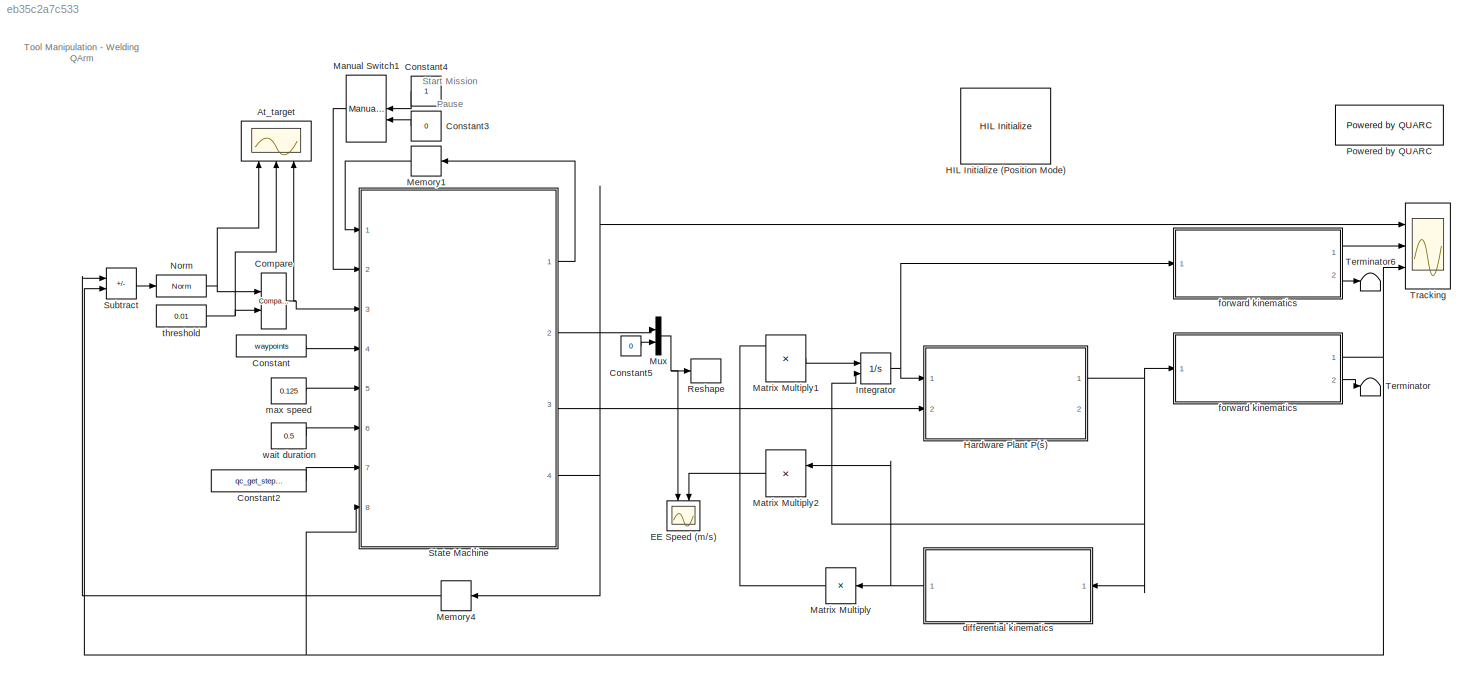
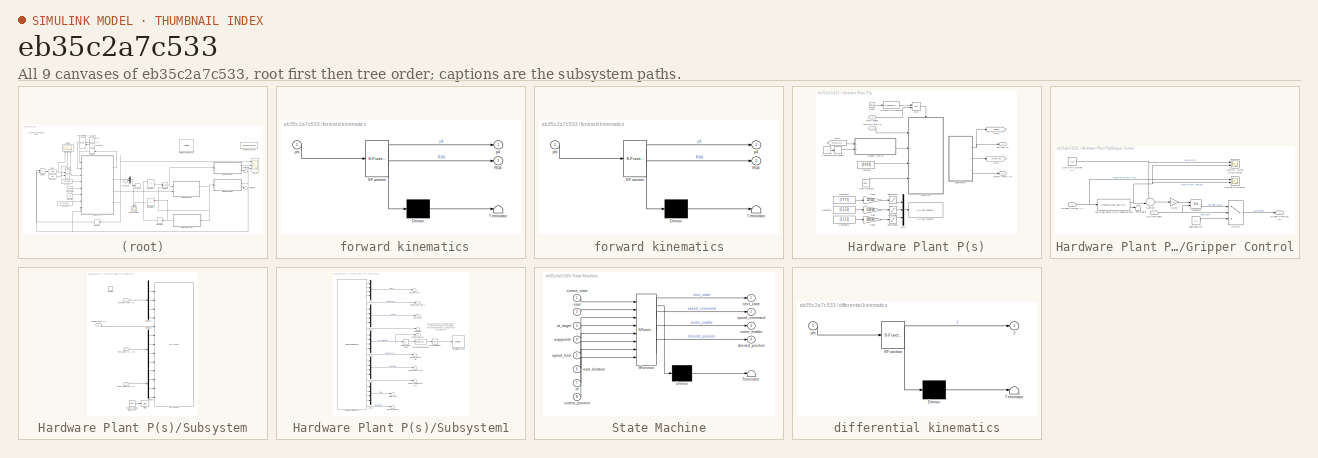
[diagram: thumbnail index - all 9 canvases of the model, root first then tree order]
MODEL slx_eb35c2a7c533
KIND model
CONFIG AbsTol = auto
CONFIG EnableMultiTasking = off
CONFIG FixedStep = 1/500
CONFIG InitFcn = home = [0.45; 0; 0.49];\ndefault_w = [0.25; 0.25; 0.25];\ndefault_a = [0.00; 0.375; 0.2];\nA = [ 0.25; 0.25; 0.1];\nB = [ 0.25; 0.50; 0.1];\nC = [-0.25; 0.50; 0.1];\nD = [-0.25; 0.25; 0.1];\n\nwaypoints_welding = [default_w, A, B, C, D, A]' ;\nwaypoints_assembly = [default_a, A, default_a, B, default_a, C, default_a, D]' ;\n\nwaypoints = waypoints_welding;
CONFIG MaxStep = auto
CONFIG MinStep = auto
CONFIG RelTol = 1e-3
CONFIG SampleTimeConstraint = Unconstrained
CONFIG SolverName = ode4
CONFIG StartTime = 0.0
CONFIG StopTime = Inf
BLOCK [SubSystem]  forward kinematics
  ErrorFcn = Stateflow.Translate.translate
  PermitHierarchicalResolution = ExplicitOnly
  Ports = [1, 2]
  SFBlockType = MATLAB Function
  TreatAsAtomicUnit = on
BLOCK [SubSystem]  forward kinematics 
  ErrorFcn = Stateflow.Translate.translate
  PermitHierarchicalResolution = ExplicitOnly
  Ports = [1, 2]
  SFBlockType = MATLAB Function
  TreatAsAtomicUnit = on
BLOCK [Demux]  forward kinematics / Demux 
  Outputs = 1
  Ports = [1, 1]
BLOCK [S-Function]  forward kinematics / SFunction 
  EnableBusSupport = off
  FunctionName = sf_sfun
  PortCounts = [1 3]
  Ports = [1, 3]
  SFcnIsStateOwnerBlock = off
  SFunctionDeploymentMode = off
  Tag = Stateflow S-Function 5
BLOCK [Terminator]  forward kinematics / Terminator 
BLOCK [Outport]  forward kinematics /R04
  Port = 2
  VectorParamsAs1DForOutWhenUnconnected = off
BLOCK [Outport]  forward kinematics /p4
  VectorParamsAs1DForOutWhenUnconnected = off
BLOCK [Inport]  forward kinematics /phi
BLOCK [Demux]  forward kinematics/ Demux 
  Outputs = 1
  Ports = [1, 1]
BLOCK [S-Function]  forward kinematics/ SFunction 
  EnableBusSupport = off
  FunctionName = sf_sfun
  PortCounts = [1 3]
  Ports = [1, 3]
  SFcnIsStateOwnerBlock = off
  SFunctionDeploymentMode = off
  Tag = Stateflow S-Function 3
BLOCK [Terminator]  forward kinematics/ Terminator 
BLOCK [Outport]  forward kinematics/R04
  Port = 2
  VectorParamsAs1DForOutWhenUnconnected = off
BLOCK [Outport]  forward kinematics/p4
  VectorParamsAs1DForOutWhenUnconnected = off
BLOCK [Inport]  forward kinematics/phi
BLOCK [Scope] At_target
  Floating = off
  NameLocation = left
  NumInputPorts = 3
  Ports = [3]
  ScopeSpecificationString = Simulink.scopes.TimeScopeBlockCfg('CurrentConfiguration', extmgr.ConfigurationSet(extmgr.Configuration('Core','General UI',true),extmgr.Configuration('Core','Source UI',true),extmgr.Configuration('Sources','WiredSimulink',true,'DataLoggingVariableName','ScopeData1'),extmgr.Configuration('Visuals','Time Domain',true,'SerializedDisplays',{struct('MinYLimReal','-0.05856','MaxYLimReal','0.52701','YLab...<+1412ch>
BLOCK [Reference] Compare  REF=quarc_library/Logic Operations/Compare
  Ports = [2, 1]
  SourceBlock = quarc_library/Logic Operations/Compare
  SourceProductName = QUARC Targets
  SourceType = Compare
BLOCK [Constant] Constant
  Value = waypoints
  VectorParams1D = off
BLOCK [Constant] Constant2
  Value = qc_get_step_size
  VectorParams1D = off
BLOCK [Constant] Constant3
  NameLocation = top
  Value = 0
BLOCK [Constant] Constant4
  NameLocation = top
BLOCK [Constant] Constant5
  Value = 0
BLOCK [Scope] EE Speed (m//s)
  Floating = off
  NumInputPorts = 2
  Ports = [2]
  ScopeSpecificationString = Simulink.scopes.TimeScopeBlockCfg('CurrentConfiguration', extmgr.ConfigurationSet(extmgr.Configuration('Core','General UI',true),extmgr.Configuration('Core','Source UI',true),extmgr.Configuration('Sources','WiredSimulink',true,'DataLoggingVariableName','ScopeData1'),extmgr.Configuration('Visuals','Time Domain',true,'SerializedDisplays',{struct('MinYLimReal','-1.00000','MaxYLimReal','1.00000','YLab...<+1792ch>
BLOCK [Reference] HIL Initialize (Position Mode)  REF=quarc_library/Data Acquisition/Generic/Configuration/HIL Initialize
  AttributesFormatString = %<object_name> (%<board_type>-%<board_number>)
  Ports = []
  Priority = 1
  SourceBlock = quarc_library/Data Acquisition/Generic/Configuration/HIL Initialize
  SourceProductName = QUARC Targets
  SourceType = HIL Initialize
  UserDataPersistent = on
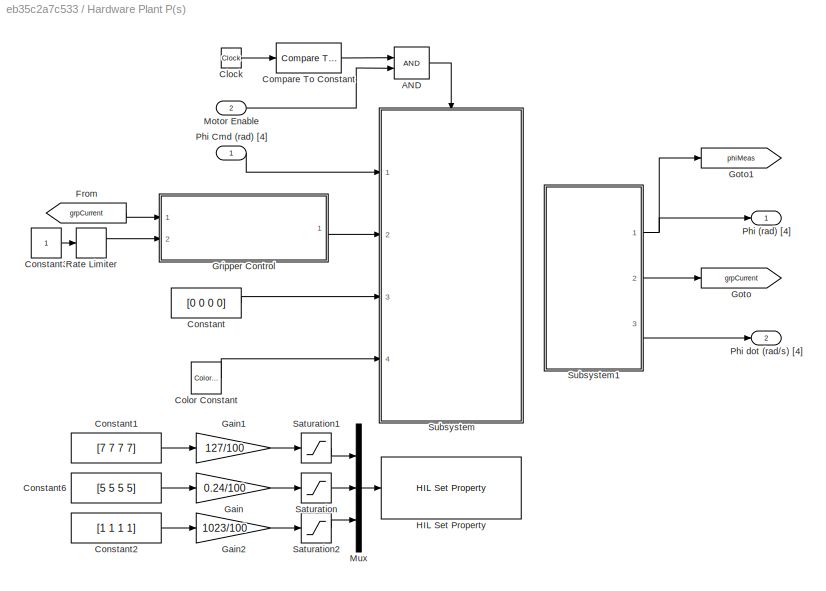
BLOCK [SubSystem] Hardware Plant P(s)
  NameLocation = top
  Permissions = NoReadOrWrite
  Ports = [2, 2]
BLOCK [Logic] Hardware Plant P(s)/AND
  AllPortsSameDT = off
  IconShape = distinctive
  OutDataTypeStr = boolean
  Ports = [2, 1]
BLOCK [Clock] Hardware Plant P(s)/Clock
BLOCK [Reference] Hardware Plant P(s)/Color Constant  REF=quarc_library/Sources/Signals/Color Constant
  Ports = [0, 1]
  SourceBlock = quarc_library/Sources/Signals/Color Constant
  SourceProductName = QUARC Targets
  SourceType = Color Constant
BLOCK [Reference] Hardware Plant P(s)/Compare To Constant  REF=simulink/Logic and Bit
Operations/Compare
To Constant
  Ports = [1, 1]
  SourceBlock = simulink/Logic and Bit\nOperations/Compare\nTo Constant
  SourceType = Compare To Constant
BLOCK [Constant] Hardware Plant P(s)/Constant
  Value = [0 0 0 0]
BLOCK [Constant] Hardware Plant P(s)/Constant1
  Value = [7 7 7 7]
BLOCK [Constant] Hardware Plant P(s)/Constant2
  Value = [1 1 1 1]
BLOCK [Constant] Hardware Plant P(s)/Constant3
BLOCK [Constant] Hardware Plant P(s)/Constant6
  Value = [5 5 5 5]
BLOCK [From] Hardware Plant P(s)/From
  GotoTag = grpCurrent
BLOCK [Gain] Hardware Plant P(s)/Gain
  Gain = 0.24/100
BLOCK [Gain] Hardware Plant P(s)/Gain1
  Gain = 127/100
BLOCK [Gain] Hardware Plant P(s)/Gain2
  Gain = 1023/100
BLOCK [Goto] Hardware Plant P(s)/Goto
  GotoTag = grpCurrent
BLOCK [Goto] Hardware Plant P(s)/Goto1
  GotoTag = phiMeas
  TagVisibility = global
BLOCK [SubSystem] Hardware Plant P(s)/Gripper Control
  Ports = [2, 1]
BLOCK [Reference] Hardware Plant P(s)/Gripper Control/2nd Order 25Hz filter (based on FFT)  REF=quarc_library/Continuous/Second-Order
Low-Pass Filter
  Ports = [1, 2]
  SourceBlock = quarc_library/Continuous/Second-Order\nLow-Pass Filter
  SourceProductName = QUARC Targets
  SourceType = Second-Order Low-Pass Filter
BLOCK [Scope] Hardware Plant P(s)/Gripper Control/Current Filteration
  Floating = off
  NameLocation = top
  NumInputPorts = 2
  Ports = [2]
  ScopeSpecificationString = Simulink.scopes.TimeScopeBlockCfg('CurrentConfiguration', extmgr.ConfigurationSet(extmgr.Configuration('Core','General UI',true),extmgr.Configuration('Core','Source UI',true),extmgr.Configuration('Sources','WiredSimulink',true,'DataLoggingVariableName','ScopeData5'),extmgr.Configuration('Visuals','Time Domain',true,'SerializedDisplays',{struct('MinYLimReal','-0.01447','MaxYLimReal','0.62651','YLab...<+1429ch>
BLOCK [Gain] Hardware Plant P(s)/Gripper Control/Gain2
  Gain = 10
BLOCK [Scope] Hardware Plant P(s)/Gripper Control/Goal vs. Actual Grip Current
  Floating = off
  NameLocation = top
  NumInputPorts = 2
  Ports = [2]
  ScopeSpecificationString = Simulink.scopes.TimeScopeBlockCfg('CurrentConfiguration', extmgr.ConfigurationSet(extmgr.Configuration('Core','General UI',true),extmgr.Configuration('Core','Source UI',true),extmgr.Configuration('Sources','WiredSimulink',true,'DataLoggingVariableName','ScopeData4'),extmgr.Configuration('Visuals','Time Domain',true,'SerializedDisplays',{struct('MinYLimReal','0.00229','MaxYLimReal','0.27702','YLabe...<+1426ch>
BLOCK [Inport] Hardware Plant P(s)/Gripper Control/Gripper Current (A)
BLOCK [Outport] Hardware Plant P(s)/Gripper Control/Gripper Position (%)
  VectorParamsAs1DForOutWhenUnconnected = off
BLOCK [Integrator] Hardware Plant P(s)/Gripper Control/Integrator
  ExternalReset = either
  InitialCondition = 0.1
  LimitOutput = on
  LowerSaturationLimit = 0.1
  Ports = [2, 1]
  UpperSaturationLimit = 0.9
BLOCK [Inport] Hardware Plant P(s)/Gripper Control/ON//OFF (bool)
  Port = 2
BLOCK [Constant] Hardware Plant P(s)/Gripper Control/Soft-Grip Current (A)
  Value = 0.25
BLOCK [Sum] Hardware Plant P(s)/Gripper Control/Subtract
  Inputs = +-|
  Ports = [2, 1]
BLOCK [Switch] Hardware Plant P(s)/Gripper Control/Switch
  Criteria = u2 > Threshold
  InputSameDT = off
  SaturateOnIntegerOverflow = off
BLOCK [Terminator] Hardware Plant P(s)/Gripper Control/Terminator
BLOCK [Constant] Hardware Plant P(s)/Gripper Control/open position
  Value = 0.1
BLOCK [Reference] Hardware Plant P(s)/HIL Set Property  REF=quarc_library/Data Acquisition/Generic/Configuration/HIL Set Property
  AttributesFormatString = (%<object_name>)
  Ports = [1]
  SourceBlock = quarc_library/Data Acquisition/Generic/Configuration/HIL Set Property
  SourceProductName = QUARC Targets
  SourceType = HIL Set Property
  UserDataPersistent = on
BLOCK [Inport] Hardware Plant P(s)/Motor Enable
  Port = 2
BLOCK [Mux] Hardware Plant P(s)/Mux
  DisplayOption = bar
  Inputs = 3
  Ports = [3, 1]
BLOCK [Outport] Hardware Plant P(s)/Phi (rad) [4]
  VectorParamsAs1DForOutWhenUnconnected = off
BLOCK [Inport] Hardware Plant P(s)/Phi Cmd (rad) [4]
BLOCK [Outport] Hardware Plant P(s)/Phi dot (rad//s) [4]
  Port = 2
  VectorParamsAs1DForOutWhenUnconnected = off
BLOCK [RateLimiter] Hardware Plant P(s)/Rate Limiter
  SampleTimeMode = inherited
BLOCK [Saturate] Hardware Plant P(s)/Saturation
  LowerLimit = 0
  UpperLimit = 0.24
BLOCK [Saturate] Hardware Plant P(s)/Saturation1
  LowerLimit = 0
  UpperLimit = 127
BLOCK [Saturate] Hardware Plant P(s)/Saturation2
  LowerLimit = 0
  UpperLimit = 1023
BLOCK [SubSystem] Hardware Plant P(s)/Subsystem
  Ports = [4, 0, 1]
BLOCK [Inport] Hardware Plant P(s)/Subsystem/Base RGB Led (%)
  Port = 4
BLOCK [Bias] Hardware Plant P(s)/Subsystem/Bias
  Bias = 0.5
  SaturateOnIntegerOverflow = off
BLOCK [Demux] Hardware Plant P(s)/Subsystem/Demux
  Outputs = 3
  Ports = [1, 3]
BLOCK [Demux] Hardware Plant P(s)/Subsystem/Demux1
  Ports = [1, 4]
BLOCK [Demux] Hardware Plant P(s)/Subsystem/Demux2
  Ports = [1, 4]
BLOCK [EnablePort] Hardware Plant P(s)/Subsystem/Enable
  Ports = []
BLOCK [Inport] Hardware Plant P(s)/Subsystem/Gripper Cmd (%)
  Port = 2
BLOCK [Reference] Hardware Plant P(s)/Subsystem/HIL Write  REF=quarc_library/Data Acquisition/Generic/Immediate I//O/HIL Write
  AttributesFormatString = (%<object_name>)
  Ports = [13]
  SourceBlock = quarc_library/Data Acquisition/Generic/Immediate I//O/HIL Write
  SourceProductName = QUARC Targets
  SourceType = HIL Write
  UserDataPersistent = on
BLOCK [Inport] Hardware Plant P(s)/Subsystem/PWM Cmd (%) [4]
  Port = 3
BLOCK [Inport] Hardware Plant P(s)/Subsystem/Phi Cmd (rad) [4]
BLOCK [Reference] Hardware Plant P(s)/Subsystem/Smooth Signal Generator  REF=quarc_library/Sources/Signals/Smooth Signal
Generator
  Ports = [0, 1]
  SourceBlock = quarc_library/Sources/Signals/Smooth Signal\nGenerator
  SourceProductName = QUARC Targets
  SourceType = Smooth Signal Generator
BLOCK [SubSystem] Hardware Plant P(s)/Subsystem1
  Ports = [0, 3]
BLOCK [Terminator] Hardware Plant P(s)/Subsystem1/Current (A) [4]
BLOCK [Outport] Hardware Plant P(s)/Subsystem1/Gripper Current (A)
  Port = 2
  VectorParamsAs1DForOutWhenUnconnected = off
BLOCK [Terminator] Hardware Plant P(s)/Subsystem1/Gripper PWM (%)
BLOCK [Terminator] Hardware Plant P(s)/Subsystem1/Gripper Speed (%//s)
BLOCK [Terminator] Hardware Plant P(s)/Subsystem1/Gripper Temperature (C)
BLOCK [Reference] Hardware Plant P(s)/Subsystem1/HIL Read Timebase1  REF=quarc_library/Data Acquisition/Generic/Timebases/HIL Read
Timebase
  AttributesFormatString = (%<object_name>)
  Ports = [0, 25]
  SourceBlock = quarc_library/Data Acquisition/Generic/Timebases/HIL Read\nTimebase
  SourceProductName = QUARC Targets
  SourceType = HIL Read Timebase
  UserDataPersistent = on
BLOCK [Mux] Hardware Plant P(s)/Subsystem1/Mux
  DisplayOption = bar
  Ports = [4, 1]
BLOCK [Mux] Hardware Plant P(s)/Subsystem1/Mux1
  DisplayOption = bar
  Ports = [4, 1]
BLOCK [Mux] Hardware Plant P(s)/Subsystem1/Mux2
  DisplayOption = bar
  Ports = [4, 1]
BLOCK [Mux] Hardware Plant P(s)/Subsystem1/Mux3
  DisplayOption = bar
  Ports = [4, 1]
BLOCK [Mux] Hardware Plant P(s)/Subsystem1/Mux4
  DisplayOption = bar
  Ports = [4, 1]
BLOCK [Terminator] Hardware Plant P(s)/Subsystem1/PWM (%) [4]
BLOCK [Outport] Hardware Plant P(s)/Subsystem1/Phi (rad) [4]
  VectorParamsAs1DForOutWhenUnconnected = off
BLOCK [Outport] Hardware Plant P(s)/Subsystem1/Phi dot (rad//s) [4]
  Port = 3
  VectorParamsAs1DForOutWhenUnconnected = off
BLOCK [Reference] Hardware Plant P(s)/Subsystem1/Stop with Message  REF=quarc_library/Sinks/Error Handling/Stop with Message
  AttributesFormatString = "%<message>"
  Ports = [1]
  SourceBlock = quarc_library/Sinks/Error Handling/Stop with Message
  SourceProductName = QUARC Targets
  SourceType = Stop with Message
BLOCK [Terminator] Hardware Plant P(s)/Subsystem1/Temperature (C) [4]
BLOCK [Terminator] Hardware Plant P(s)/Subsystem1/Terminator
BLOCK [Logic] Hardware Plant P(s)/Subsystem1/for any of the joints
  AllPortsSameDT = off
  IconShape = distinctive
  Inputs = 1
  Operator = OR
  OutDataTypeStr = boolean
  Ports = [1, 1]
BLOCK [Abs] Hardware Plant P(s)/Subsystem1/if the absolute speed
  SaturateOnIntegerOverflow = off
BLOCK [Reference] Hardware Plant P(s)/Subsystem1/is greater than 90 deg//s  REF=simulink/Logic and Bit
Operations/Compare
To Constant
  Ports = [1, 1]
  SourceBlock = simulink/Logic and Bit\nOperations/Compare\nTo Constant
  SourceType = Compare To Constant
BLOCK [Integrator] Integrator
  InitialConditionSource = external
  Ports = [2, 1]
BLOCK [ManualSwitch] Manual Switch1
  CurrentSetting = 0
  NameLocation = top
BLOCK [Product] Matrix Multiply
  Inputs = /
  Multiplication = Matrix(*)
  NameLocation = top
  Ports = [1, 1]
BLOCK [Product] Matrix Multiply1
  Multiplication = Matrix(*)
  Ports = [2, 1]
BLOCK [Product] Matrix Multiply2
  Multiplication = Matrix(*)
  NameLocation = top
  Ports = [2, 1]
BLOCK [Memory] Memory1
  InitialCondition = 1
  NameLocation = top
BLOCK [Memory] Memory4
  InitialCondition = home'
BLOCK [Mux] Mux
  DisplayOption = bar
  Inputs = 2
  Ports = [2, 1]
BLOCK [Reference] Norm  REF=quarc_library/Math Operations/Vectors/Norm
  Ports = [1, 1]
  SourceBlock = quarc_library/Math Operations/Vectors/Norm
  SourceProductName = QUARC Targets
  SourceType = Norm
BLOCK [Reference] Powered by QUARC  REF=quarc_library/Logos/Powered by QUARC
  Ports = []
  SourceBlock = quarc_library/Logos/Powered by QUARC
  SourceProductName = QUARC Targets
  SourceType = Powered by QUARC
BLOCK [Reshape] Reshape
  OutputDimensionality = Column vector (2-D)
  Ports = [1, 1]
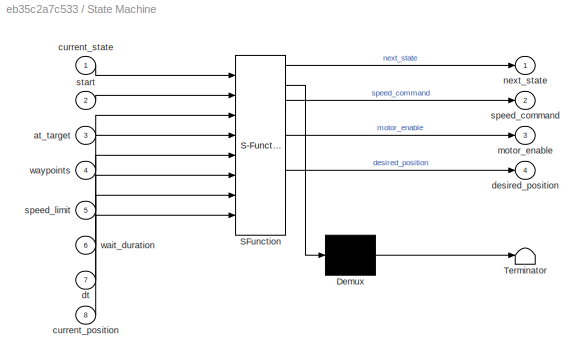
BLOCK [SubSystem] State Machine
  ErrorFcn = Stateflow.Translate.translate
  PermitHierarchicalResolution = ExplicitOnly
  Ports = [8, 4]
  SFBlockType = MATLAB Function
  TreatAsAtomicUnit = on
BLOCK [Demux] State Machine/ Demux 
  Outputs = 1
  Ports = [1, 1]
BLOCK [S-Function] State Machine/ SFunction 
  EnableBusSupport = off
  FunctionName = sf_sfun
  PortCounts = [8 5]
  Ports = [8, 5]
  SFcnIsStateOwnerBlock = off
  SFunctionDeploymentMode = off
  Tag = Stateflow S-Function 2
BLOCK [Terminator] State Machine/ Terminator 
BLOCK [Inport] State Machine/at_target
  Port = 3
BLOCK [Inport] State Machine/current_position
  Port = 8
BLOCK [Inport] State Machine/current_state
BLOCK [Outport] State Machine/desired_position
  Port = 4
  VectorParamsAs1DForOutWhenUnconnected = off
BLOCK [Inport] State Machine/dt
  Port = 7
BLOCK [Outport] State Machine/motor_enable
  Port = 3
BLOCK [Outport] State Machine/next_state
  VectorParamsAs1DForOutWhenUnconnected = off
BLOCK [Outport] State Machine/speed_command
  Port = 2
  VectorParamsAs1DForOutWhenUnconnected = off
BLOCK [Inport] State Machine/speed_limit
  Port = 5
BLOCK [Inport] State Machine/start
  Port = 2
BLOCK [Inport] State Machine/wait_duration
  Port = 6
BLOCK [Inport] State Machine/waypoints
  Port = 4
BLOCK [Sum] Subtract
  IconShape = rectangular
  Inputs = +-
  Ports = [2, 1]
BLOCK [Terminator] Terminator
BLOCK [Terminator] Terminator6
BLOCK [Scope] Tracking
  Floating = off
  NumInputPorts = 3
  Ports = [3]
  ScopeSpecificationString = Simulink.scopes.TimeScopeBlockCfg('CurrentConfiguration', extmgr.ConfigurationSet(extmgr.Configuration('Core','General UI',true),extmgr.Configuration('Core','Source UI',true),extmgr.Configuration('Sources','WiredSimulink',true),extmgr.Configuration('Visuals','Time Domain',true,'SerializedDisplays',{struct('MinYLimReal','-0.625','MaxYLimReal','0.625','YLabelReal','','MinYLimMag','0.00000','MaxYLimM...<+1612ch>
BLOCK [SubSystem] differential kinematics
  ErrorFcn = Stateflow.Translate.translate
  PermitHierarchicalResolution = ExplicitOnly
  Ports = [1, 1]
  SFBlockType = MATLAB Function
  TreatAsAtomicUnit = on
BLOCK [Demux] differential kinematics/ Demux 
  Outputs = 1
  Ports = [1, 1]
BLOCK [S-Function] differential kinematics/ SFunction 
  EnableBusSupport = off
  FunctionName = sf_sfun
  PortCounts = [1 2]
  Ports = [1, 2]
  SFcnIsStateOwnerBlock = off
  SFunctionDeploymentMode = off
  Tag = Stateflow S-Function 1
BLOCK [Terminator] differential kinematics/ Terminator 
BLOCK [Outport] differential kinematics/J
  VectorParamsAs1DForOutWhenUnconnected = off
BLOCK [Inport] differential kinematics/phi
BLOCK [Constant] max speed
  Value = 0.125
  VectorParams1D = off
BLOCK [Constant] threshold
  Value = 0.01
  VectorParams1D = off
BLOCK [Constant] wait duration
  Value = 0.5
  VectorParams1D = off
ANNOTATION (root): Tool Manipulation - Welding QArm
ANNOTATION (root): Pause
ANNOTATION (root): Start Mission
ANNOTATION Hardware Plant P(s)/Subsystem1: Maximum speed is 90 deg/s, but it should not be moving any faster than 45 deg/s. If it is, failure is detected. Power cycle the arm and restart the model.
LINE  forward kinematics :1 -> Tracking:2
LINE  forward kinematics :2 -> Terminator6:1
NET  forward kinematics:1 -> State Machine:8, Subtract:2, Tracking:3
LINE  forward kinematics:2 -> Terminator:1
NET Compare:1 -> At_target:3, State Machine:3
LINE Constant2:1 -> State Machine:7
LINE Constant3:1 -> Manual Switch1:2
LINE Constant4:1 -> Manual Switch1:1
LINE Constant5:1 -> Mux:2
LINE Constant:1 -> State Machine:4
LINE Hardware Plant P(s)/AND:1 -> Hardware Plant P(s)/Subsystem:enable
LINE Hardware Plant P(s)/Clock:1 -> Hardware Plant P(s)/Compare To Constant:1
LINE Hardware Plant P(s)/Color Constant:1 -> Hardware Plant P(s)/Subsystem:4
LINE Hardware Plant P(s)/Compare To Constant:1 -> Hardware Plant P(s)/AND:1
LINE Hardware Plant P(s)/Constant1:1 -> Hardware Plant P(s)/Gain1:1
LINE Hardware Plant P(s)/Constant2:1 -> Hardware Plant P(s)/Gain2:1
LINE Hardware Plant P(s)/Constant3:1 -> Hardware Plant P(s)/Rate Limiter:1
LINE Hardware Plant P(s)/Constant6:1 -> Hardware Plant P(s)/Gain:1
LINE Hardware Plant P(s)/Constant:1 -> Hardware Plant P(s)/Subsystem:3
LINE Hardware Plant P(s)/From:1 -> Hardware Plant P(s)/Gripper Control:1
LINE Hardware Plant P(s)/Gain1:1 -> Hardware Plant P(s)/Saturation1:1
LINE Hardware Plant P(s)/Gain2:1 -> Hardware Plant P(s)/Saturation2:1
LINE Hardware Plant P(s)/Gain:1 -> Hardware Plant P(s)/Saturation:1
NET Hardware Plant P(s)/Gripper Control/2nd Order 25Hz filter (based on FFT):1 -> Hardware Plant P(s)/Gripper Control/Current Filteration:2, Hardware Plant P(s)/Gripper Control/Goal vs. Actual Grip Current:2, Hardware Plant P(s)/Gripper Control/Subtract:2
LINE Hardware Plant P(s)/Gripper Control/2nd Order 25Hz filter (based on FFT):2 -> Hardware Plant P(s)/Gripper Control/Terminator:1
LINE Hardware Plant P(s)/Gripper Control/Gain2:1 -> Hardware Plant P(s)/Gripper Control/Integrator:1
NET Hardware Plant P(s)/Gripper Control/Gripper Current (A):1 -> Hardware Plant P(s)/Gripper Control/2nd Order 25Hz filter (based on FFT):1, Hardware Plant P(s)/Gripper Control/Current Filteration:1
LINE Hardware Plant P(s)/Gripper Control/Integrator:1 -> Hardware Plant P(s)/Gripper Control/Switch:1
NET Hardware Plant P(s)/Gripper Control/ON//OFF (bool):1 -> Hardware Plant P(s)/Gripper Control/Integrator:2, Hardware Plant P(s)/Gripper Control/Switch:2
NET Hardware Plant P(s)/Gripper Control/Soft-Grip Current (A):1 -> Hardware Plant P(s)/Gripper Control/Goal vs. Actual Grip Current:1, Hardware Plant P(s)/Gripper Control/Subtract:1
LINE Hardware Plant P(s)/Gripper Control/Subtract:1 -> Hardware Plant P(s)/Gripper Control/Gain2:1
LINE Hardware Plant P(s)/Gripper Control/Switch:1 -> Hardware Plant P(s)/Gripper Control/Gripper Position (%):1
LINE Hardware Plant P(s)/Gripper Control/open position:1 -> Hardware Plant P(s)/Gripper Control/Switch:3
LINE Hardware Plant P(s)/Gripper Control:1 -> Hardware Plant P(s)/Subsystem:2
LINE Hardware Plant P(s)/Motor Enable:1 -> Hardware Plant P(s)/AND:2
LINE Hardware Plant P(s)/Mux:1 -> Hardware Plant P(s)/HIL Set Property:1
LINE Hardware Plant P(s)/Phi Cmd (rad) [4]:1 -> Hardware Plant P(s)/Subsystem:1
LINE Hardware Plant P(s)/Rate Limiter:1 -> Hardware Plant P(s)/Gripper Control:2
LINE Hardware Plant P(s)/Saturation1:1 -> Hardware Plant P(s)/Mux:1
LINE Hardware Plant P(s)/Saturation2:1 -> Hardware Plant P(s)/Mux:3
LINE Hardware Plant P(s)/Saturation:1 -> Hardware Plant P(s)/Mux:2
LINE Hardware Plant P(s)/Subsystem/Base RGB Led (%):1 -> Hardware Plant P(s)/Subsystem/Demux:1
LINE Hardware Plant P(s)/Subsystem/Bias:1 -> Hardware Plant P(s)/Subsystem/HIL Write:13
LINE Hardware Plant P(s)/Subsystem/Demux1:1 -> Hardware Plant P(s)/Subsystem/HIL Write:1
LINE Hardware Plant P(s)/Subsystem/Demux1:2 -> Hardware Plant P(s)/Subsystem/HIL Write:2
LINE Hardware Plant P(s)/Subsystem/Demux1:3 -> Hardware Plant P(s)/Subsystem/HIL Write:3
LINE Hardware Plant P(s)/Subsystem/Demux1:4 -> Hardware Plant P(s)/Subsystem/HIL Write:4
LINE Hardware Plant P(s)/Subsystem/Demux2:1 -> Hardware Plant P(s)/Subsystem/HIL Write:6
LINE Hardware Plant P(s)/Subsystem/Demux2:2 -> Hardware Plant P(s)/Subsystem/HIL Write:7
LINE Hardware Plant P(s)/Subsystem/Demux2:3 -> Hardware Plant P(s)/Subsystem/HIL Write:8
LINE Hardware Plant P(s)/Subsystem/Demux2:4 -> Hardware Plant P(s)/Subsystem/HIL Write:9
LINE Hardware Plant P(s)/Subsystem/Demux:1 -> Hardware Plant P(s)/Subsystem/HIL Write:10
LINE Hardware Plant P(s)/Subsystem/Demux:2 -> Hardware Plant P(s)/Subsystem/HIL Write:11
LINE Hardware Plant P(s)/Subsystem/Demux:3 -> Hardware Plant P(s)/Subsystem/HIL Write:12
LINE Hardware Plant P(s)/Subsystem/Gripper Cmd (%):1 -> Hardware Plant P(s)/Subsystem/HIL Write:5
LINE Hardware Plant P(s)/Subsystem/PWM Cmd (%) [4]:1 -> Hardware Plant P(s)/Subsystem/Demux2:1
LINE Hardware Plant P(s)/Subsystem/Phi Cmd (rad) [4]:1 -> Hardware Plant P(s)/Subsystem/Demux1:1
LINE Hardware Plant P(s)/Subsystem/Smooth Signal Generator:1 -> Hardware Plant P(s)/Subsystem/Bias:1
LINE Hardware Plant P(s)/Subsystem1/HIL Read Timebase1:1 -> Hardware Plant P(s)/Subsystem1/Mux:1
LINE Hardware Plant P(s)/Subsystem1/HIL Read Timebase1:10 -> Hardware Plant P(s)/Subsystem1/Terminator:1
LINE Hardware Plant P(s)/Subsystem1/HIL Read Timebase1:11 -> Hardware Plant P(s)/Subsystem1/Mux1:1
LINE Hardware Plant P(s)/Subsystem1/HIL Read Timebase1:12 -> Hardware Plant P(s)/Subsystem1/Mux1:2
LINE Hardware Plant P(s)/Subsystem1/HIL Read Timebase1:13 -> Hardware Plant P(s)/Subsystem1/Mux1:3
LINE Hardware Plant P(s)/Subsystem1/HIL Read Timebase1:14 -> Hardware Plant P(s)/Subsystem1/Mux1:4
LINE Hardware Plant P(s)/Subsystem1/HIL Read Timebase1:15 -> Hardware Plant P(s)/Subsystem1/Gripper Speed (%//s):1
LINE Hardware Plant P(s)/Subsystem1/HIL Read Timebase1:16 -> Hardware Plant P(s)/Subsystem1/Mux3:1
LINE Hardware Plant P(s)/Subsystem1/HIL Read Timebase1:17 -> Hardware Plant P(s)/Subsystem1/Mux3:2
LINE Hardware Plant P(s)/Subsystem1/HIL Read Timebase1:18 -> Hardware Plant P(s)/Subsystem1/Mux3:3
LINE Hardware Plant P(s)/Subsystem1/HIL Read Timebase1:19 -> Hardware Plant P(s)/Subsystem1/Mux3:4
LINE Hardware Plant P(s)/Subsystem1/HIL Read Timebase1:2 -> Hardware Plant P(s)/Subsystem1/Mux:2
LINE Hardware Plant P(s)/Subsystem1/HIL Read Timebase1:20 -> Hardware Plant P(s)/Subsystem1/Gripper Temperature (C):1
LINE Hardware Plant P(s)/Subsystem1/HIL Read Timebase1:21 -> Hardware Plant P(s)/Subsystem1/Mux4:1
LINE Hardware Plant P(s)/Subsystem1/HIL Read Timebase1:22 -> Hardware Plant P(s)/Subsystem1/Mux4:2
LINE Hardware Plant P(s)/Subsystem1/HIL Read Timebase1:23 -> Hardware Plant P(s)/Subsystem1/Mux4:3
LINE Hardware Plant P(s)/Subsystem1/HIL Read Timebase1:24 -> Hardware Plant P(s)/Subsystem1/Mux4:4
LINE Hardware Plant P(s)/Subsystem1/HIL Read Timebase1:25 -> Hardware Plant P(s)/Subsystem1/Gripper PWM (%):1
LINE Hardware Plant P(s)/Subsystem1/HIL Read Timebase1:3 -> Hardware Plant P(s)/Subsystem1/Mux:3
LINE Hardware Plant P(s)/Subsystem1/HIL Read Timebase1:4 -> Hardware Plant P(s)/Subsystem1/Mux:4
LINE Hardware Plant P(s)/Subsystem1/HIL Read Timebase1:5 -> Hardware Plant P(s)/Subsystem1/Gripper Current (A):1
LINE Hardware Plant P(s)/Subsystem1/HIL Read Timebase1:6 -> Hardware Plant P(s)/Subsystem1/Mux2:1
LINE Hardware Plant P(s)/Subsystem1/HIL Read Timebase1:7 -> Hardware Plant P(s)/Subsystem1/Mux2:2
LINE Hardware Plant P(s)/Subsystem1/HIL Read Timebase1:8 -> Hardware Plant P(s)/Subsystem1/Mux2:3
LINE Hardware Plant P(s)/Subsystem1/HIL Read Timebase1:9 -> Hardware Plant P(s)/Subsystem1/Mux2:4
NET Hardware Plant P(s)/Subsystem1/Mux1:1 -> Hardware Plant P(s)/Subsystem1/Phi dot (rad//s) [4]:1, Hardware Plant P(s)/Subsystem1/if the absolute speed:1
LINE Hardware Plant P(s)/Subsystem1/Mux2:1 -> Hardware Plant P(s)/Subsystem1/Phi (rad) [4]:1
LINE Hardware Plant P(s)/Subsystem1/Mux3:1 -> Hardware Plant P(s)/Subsystem1/Temperature (C) [4]:1
LINE Hardware Plant P(s)/Subsystem1/Mux4:1 -> Hardware Plant P(s)/Subsystem1/PWM (%) [4]:1
LINE Hardware Plant P(s)/Subsystem1/Mux:1 -> Hardware Plant P(s)/Subsystem1/Current (A) [4]:1
LINE Hardware Plant P(s)/Subsystem1/for any of the joints:1 -> Hardware Plant P(s)/Subsystem1/Stop with Message:1
LINE Hardware Plant P(s)/Subsystem1/if the absolute speed:1 -> Hardware Plant P(s)/Subsystem1/is greater than 90 deg//s:1
LINE Hardware Plant P(s)/Subsystem1/is greater than 90 deg//s:1 -> Hardware Plant P(s)/Subsystem1/for any of the joints:1
NET Hardware Plant P(s)/Subsystem1:1 -> Hardware Plant P(s)/Goto1:1, Hardware Plant P(s)/Phi (rad) [4]:1
LINE Hardware Plant P(s)/Subsystem1:2 -> Hardware Plant P(s)/Goto:1
LINE Hardware Plant P(s)/Subsystem1:3 -> Hardware Plant P(s)/Phi dot (rad//s) [4]:1
NET Hardware Plant P(s):1 ->  forward kinematics:1, Integrator:2, differential kinematics:1
NET Integrator:1 ->  forward kinematics :1, Hardware Plant P(s):1
LINE Manual Switch1:1 -> State Machine:2
LINE Matrix Multiply1:1 -> Integrator:1
LINE Matrix Multiply2:1 -> EE Speed (m//s):2
LINE Matrix Multiply:1 -> Matrix Multiply1:1
LINE Memory1:1 -> State Machine:1
LINE Memory4:1 -> Subtract:1
NET Mux:1 -> EE Speed (m//s):1, Reshape:1
NET Norm:1 -> At_target:1, Compare:1
LINE State Machine:1 -> Memory1:1
LINE State Machine:2 -> Mux:1
LINE State Machine:3 -> Hardware Plant P(s):2
NET State Machine:4 -> Memory4:1, Tracking:1
LINE Subtract:1 -> Norm:1
NET differential kinematics:1 -> Matrix Multiply2:1, Matrix Multiply:1
LINE max speed:1 -> State Machine:5
NET threshold:1 -> At_target:2, Compare:2
LINE wait duration:1 -> State Machine:6
note: NET lines group one-source signal fan-out (src -> all destinations, sorted); 1:1 wires keep LINE
CHART differential kinematics states=1 transitions=1
  STATE_LABEL 'eML_blk_kernel()'
  STATE_LABEL 'SCRIPT:\nfunction J   = qarmDifferentialKinematics(phi)\n\n%% QUANSER_ARM_FDK - Returns the Jacobian calculated from analytical eqn.s\n% v 1.0 - 13th August 2020\n\n% REFERENCE: \n% Chapter 5. Velocity Kinematics\n% Robot Dynamics and Control \n% Spong, Vidyasagar\n% 1989\n\n% INPUTS:\n% phi     : Alternate joint angles vector 4 x 1\n\n% OUTPUTS:\n% p4      : End-effector frame {4} position vector expressed in ba...<+654ch>'
CHART State Machine states=1 transitions=1
  STATE_LABEL 'eML_blk_kernel()'
  STATE_LABEL 'SCRIPT:\nfunction [next_state, speed_command, motor_enable, desired_position] = stateMachine(current_state, start, at_target, waypoints, speed_limit, wait_duration, dt, current_position)\n\n% Timer that handles waiting at waypoint upon arrival\npersistent timer index\nif isempty(timer)\n    timer = 0;\n    index = 1;\nend\n\n% Calculate position error\nerror = waypoints(index, :) - current_position; % \n\n% Ca...<+2066ch>'
CHART  forward kinematics states=1 transitions=1
  STATE_LABEL 'eML_blk_kernel()'
  STATE_LABEL 'SCRIPT:\nfunction [p4, R04] = qarmForwardKinematics(phi)\n\n%% QUANSER_ARM_FPK\n% v 4.0 - 4th June 2020\n\n% REFERENCE: \n% Chapter 3. Forward Kinematics\n% Robot Dynamics and Control \n% Spong, Vidyasagar\n% 1989\n\n% INPUTS:\n% phi     : Alternate joint angles vector 4 x 1\n\n% OUTPUTS:\n% p4      : End-effector frame {4} position vector expressed in base frame {0}\n% R04     : rotation matrix from end-effector ...<+1865ch>'
CHART  forward kinematics  states=1 transitions=1
  STATE_LABEL 'eML_blk_kernel()'
  STATE_LABEL 'SCRIPT:\nfunction [p4, R04] = qarmForwardKinematics(phi)\n\n%% QUANSER_ARM_FPK\n% v 4.0 - 4th June 2020\n\n% REFERENCE: \n% Chapter 3. Forward Kinematics\n% Robot Dynamics and Control \n% Spong, Vidyasagar\n% 1989\n\n% INPUTS:\n% phi     : Alternate joint angles vector 4 x 1\n\n% OUTPUTS:\n% p4      : End-effector frame {4} position vector expressed in base frame {0}\n% R04     : rotation matrix from end-effector ...<+1865ch>'
CHART  states=0 transitions=0
CHART  states=0 transitions=0
CHART  states=0 transitions=0
CHART  states=0 transitions=0
